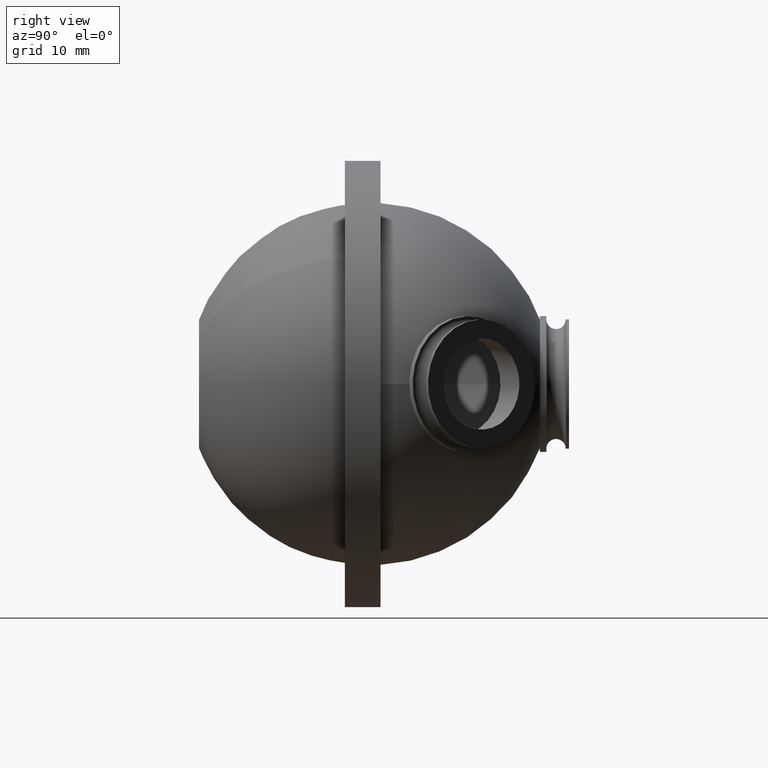
[diagram: clean part render]
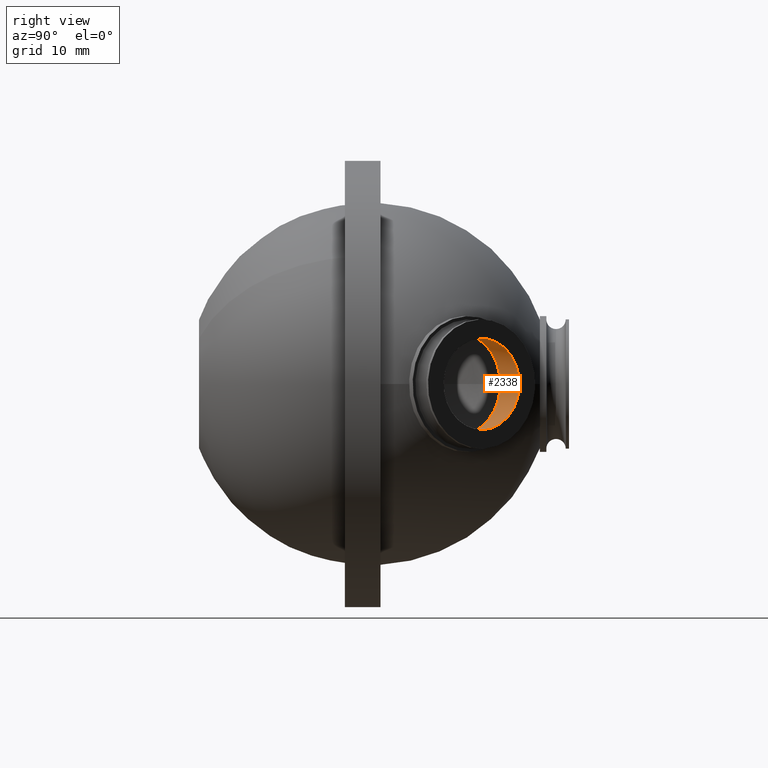
[diagram: same view with one face highlighted and labeled with its STEP entity id]
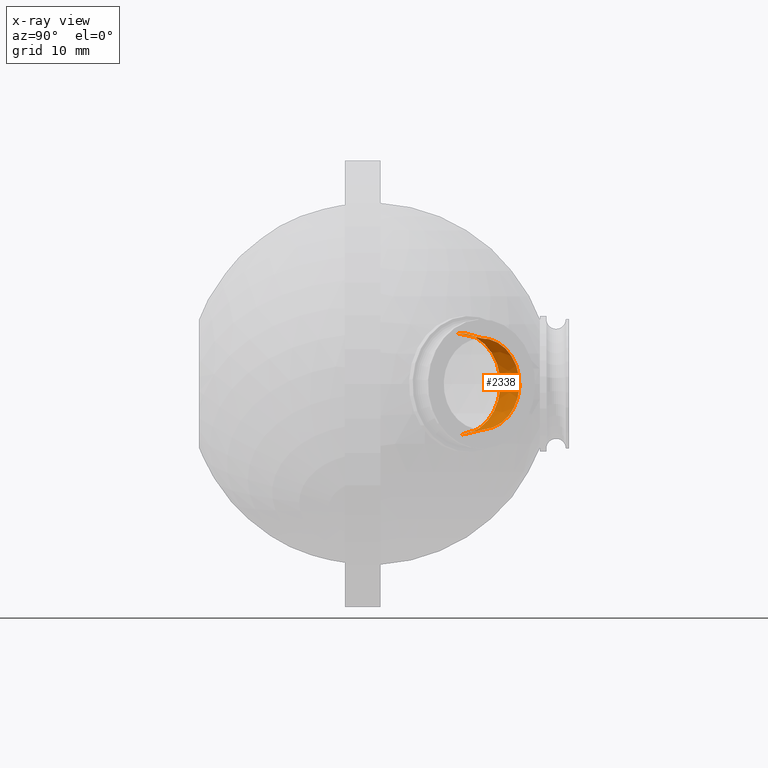
[diagram: x-ray of the same camera — body ghosted, the highlighted face saturated]
A machine part, right view. The second image highlights one B-rep face of the part: STEP entity #2338.
The next image is the same camera in x-ray: the body ghosted, the highlighted face saturated — about 0% of this face is hidden behind the body in this view.
In plain terms, the highlighted conical surface has half-angle 7.326 deg.
Its self-contained STEP definition (entity closure, byte-faithful):
#107 = CARTESIAN_POINT ( 'NONE',  ( 28.28187285964686737, -4.069079151649826365, -7.889635345171515546 ) ) ;
#181 = DIRECTION ( 'NONE',  ( 0.02863505567664705390, -0.04245321587738613150, 0.9986880183761410734 ) ) ;
#201 = CARTESIAN_POINT ( 'NONE',  ( 33.69454780635582836, -0.4698040380732080856, -7.055017501242882183 ) ) ;
#281 = LINE ( 'NONE', #3215, #921 ) ;
#307 = FACE_OUTER_BOUND ( 'NONE', #3225, .T. ) ;
#471 = EDGE_CURVE ( 'NONE', #3292, #1296, #589, .T. ) ;
#589 = CIRCLE ( 'NONE', #1252, 7.064285714285714057 ) ;
#617 = DIRECTION ( 'NONE',  ( -0.02863505567664705390, 0.04245321587738613150, -0.9986880183761410734 ) ) ;
#679 = CARTESIAN_POINT ( 'NONE',  ( 34.09912023584445961, -1.069607330969420955, 7.055017501242883071 ) ) ;
#700 = DIRECTION ( 'NONE',  ( 0.02863505567664729329, -0.04245321587738614538, 0.9986880183761410734 ) ) ;
#838 = CONICAL_SURFACE ( 'NONE', #902, 7.900000000000001243, 0.1278699185599999621 ) ;
#902 = AXIS2_PLACEMENT_3D ( 'NONE', #1207, #2060, #617 ) ;
#921 = VECTOR ( 'NONE', #3468, 1000.000000000000114 ) ;
#1038 = VECTOR ( 'NONE', #3606, 1000.000000000000000 ) ;
#1207 = CARTESIAN_POINT ( 'NONE',  ( 28.50808979949237809, -4.404459557081175980, 7.351547055859168382E-16 ) ) ;
#1249 = EDGE_CURVE ( 'NONE', #1278, #3755, #2352, .T. ) ;
#1252 = AXIS2_PLACEMENT_3D ( 'NONE', #3001, #2135, #700 ) ;
#1278 = VERTEX_POINT ( 'NONE', #107 ) ;
#1296 = VERTEX_POINT ( 'NONE', #201 ) ;
#1314 = ORIENTED_EDGE ( 'NONE', *, *, #1249, .F. ) ;
#1390 = CARTESIAN_POINT ( 'NONE',  ( 28.73430673933789237, -4.739839962512526483, 7.889635345171515546 ) ) ;
#1923 = ORIENTED_EDGE ( 'NONE', *, *, #3042, .F. ) ;
#2060 = DIRECTION ( 'NONE',  ( -0.8290375725550409580, -0.5591929034707481261, 2.433599305267576412E-17 ) ) ;
#2135 = DIRECTION ( 'NONE',  ( -0.8290375725550409580, -0.5591929034707481261, 2.433599305267576412E-17 ) ) ;
#2177 = CARTESIAN_POINT ( 'NONE',  ( 28.50808979949237809, -4.404459557081175980, 7.351547055859168382E-16 ) ) ;
#2338 = ADVANCED_FACE ( 'NONE', ( #307 ), #838, .F. ) ;
#2349 = ORIENTED_EDGE ( 'NONE', *, *, #471, .F. ) ;
#2352 = CIRCLE ( 'NONE', #3141, 7.900000000000001243 ) ;
#2434 = LINE ( 'NONE', #2758, #1038 ) ;
#2758 = CARTESIAN_POINT ( 'NONE',  ( 28.28187285964686737, -4.069079151649825477, -7.889635345171515546 ) ) ;
#3001 = CARTESIAN_POINT ( 'NONE',  ( 33.89683402110014043, -0.7697056845213131604, 5.769707507435243283E-16 ) ) ;
#3042 = EDGE_CURVE ( 'NONE', #1296, #1278, #2434, .T. ) ;
#3048 = ORIENTED_EDGE ( 'NONE', *, *, #3152, .T. ) ;
#3061 = DIRECTION ( 'NONE',  ( 0.8290375725550409580, 0.5591929034707481261, -2.433599305267576412E-17 ) ) ;
#3141 = AXIS2_PLACEMENT_3D ( 'NONE', #2177, #3061, #181 ) ;
#3152 = EDGE_CURVE ( 'NONE', #3292, #3755, #281, .T. ) ;
#3215 = CARTESIAN_POINT ( 'NONE',  ( 28.73430673933789237, -4.739839962512527372, 7.889635345171515546 ) ) ;
#3225 = EDGE_LOOP ( 'NONE', ( #2349, #3048, #1314, #1923 ) ) ;
#3292 = VERTEX_POINT ( 'NONE', #679 ) ;
#3468 = DIRECTION ( 'NONE',  ( -0.8186175313365129380, -0.5600412350254110327, 0.1273544363566719573 ) ) ;
#3606 = DIRECTION ( 'NONE',  ( -0.8259207157317177694, -0.5492138188952290223, -0.1273544363566719295 ) ) ;
#3755 = VERTEX_POINT ( 'NONE', #1390 ) ;